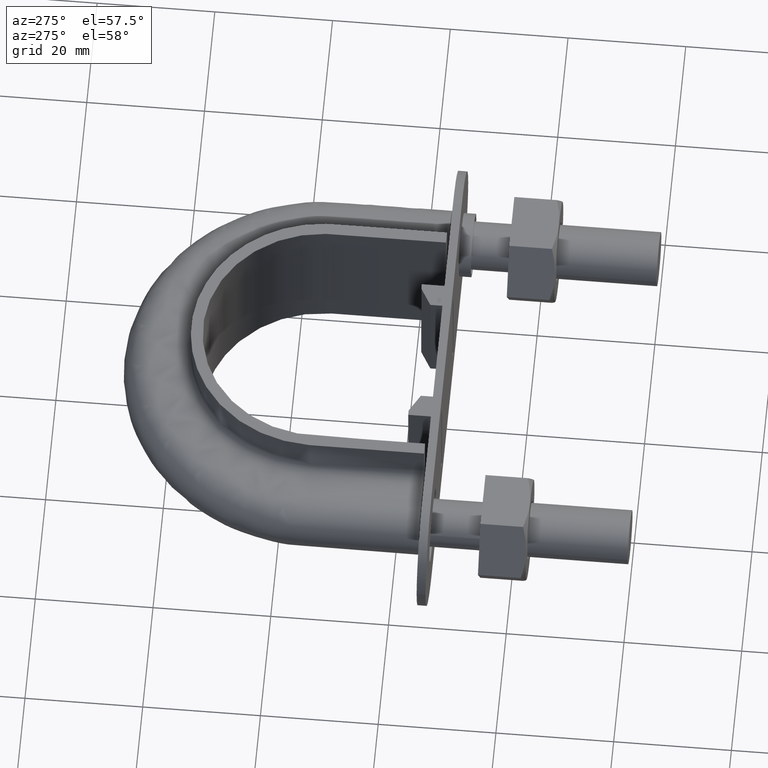
[diagram: clean part render]
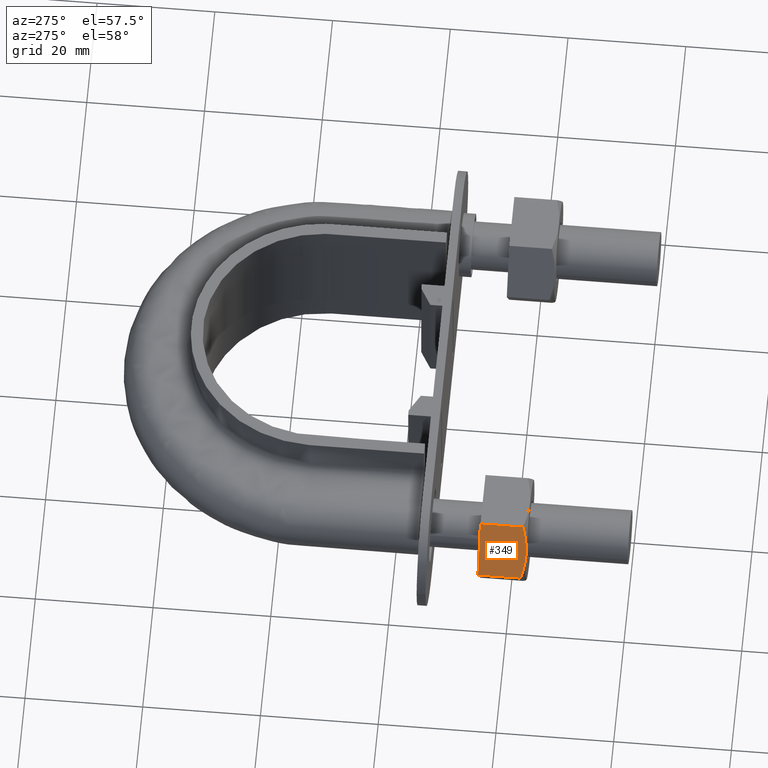
[diagram: same view with one face highlighted and labeled with its STEP entity id]
A machine part, auxiliary view. The second image highlights one B-rep face of the part: STEP entity #349.
In plain terms, the highlighted planar face has unit normal (0.866, -0, -0.5).
Its self-contained STEP definition (entity closure, byte-faithful):
#349 = ADVANCED_FACE( '', ( #568 ), #569, .F. );
#568 = FACE_OUTER_BOUND( '', #1650, .T. );
#569 = PLANE( '', #1651 );
#1650 = EDGE_LOOP( '', ( #2321, #2322, #2323, #2324, #2325 ) );
#1651 = AXIS2_PLACEMENT_3D( '', #2326, #2327, #2328 );
#2321 = ORIENTED_EDGE( '', *, *, #2695, .F. );
#2322 = ORIENTED_EDGE( '', *, *, #2728, .F. );
#2323 = ORIENTED_EDGE( '', *, *, #2729, .F. );
#2324 = ORIENTED_EDGE( '', *, *, #2702, .F. );
#2325 = ORIENTED_EDGE( '', *, *, #2722, .F. );
#2326 = CARTESIAN_POINT( '', ( -37.8149545762228, 25.0000000000000, 1.15330621785827E-007 ) );
#2327 = DIRECTION( '', ( 0.866025397909171, -1.42085420791467E-017, -0.500000010176262 ) );
#2328 = DIRECTION( '', ( -0.500000010176262, 2.20311349664979E-016, -0.866025397909171 ) );
#2695 = EDGE_CURVE( '', #3024, #3037, #3038, .T. );
#2702 = EDGE_CURVE( '', #3048, #3050, #3051, .T. );
#2722 = EDGE_CURVE( '', #3037, #3048, #3081, .T. );
#2728 = EDGE_CURVE( '', #3089, #3024, #3090, .T. );
#2729 = EDGE_CURVE( '', #3050, #3089, #3091, .F. );
#3024 = VERTEX_POINT( '', #3744 );
#3037 = VERTEX_POINT( '', #3765 );
#3038 = B_SPLINE_CURVE_WITH_KNOTS( '', 3, ( #3766, #3767, #3768, #3769, #3770, #3771, #3772, #3773 ), .UNSPECIFIED., .F., .F., ( 4, 2, 2, 4 ), ( 0.00493529902949345, 0.00616408349151745, 0.00739286795354144, 0.00985043687758943 ), .UNSPECIFIED. );
#3048 = VERTEX_POINT( '', #3784 );
#3050 = VERTEX_POINT( '', #3786 );
#3051 = LINE( '', #3787, #3788 );
#3081 = LINE( '', #3856, #3857 );
#3089 = VERTEX_POINT( '', #3877 );
#3090 = B_SPLINE_CURVE_WITH_KNOTS( '', 3, ( #3878, #3879, #3880, #3881, #3882, #3883 ), .UNSPECIFIED., .F., .F., ( 4, 2, 4 ), ( 7.17194508350585E-007, 0.00246800811200090, 0.00493529902949345 ), .UNSPECIFIED. );
#3091 = LINE( '', #3884, #3885 );
#3744 = CARTESIAN_POINT( '', ( -35.3612158822275, 17.0000000000007, 4.25000008649797 ) );
#3765 = CARTESIAN_POINT( '', ( -37.7999656115133, 17.7505553499471, 0.0259617630558714 ) );
#3766 = CARTESIAN_POINT( '', ( -35.3612158822272, 17.0000000000004, 4.25000008649782 ) );
#3767 = CARTESIAN_POINT( '', ( -35.5680707003126, 17.0000000000004, 3.89171704150597 ) );
#3768 = CARTESIAN_POINT( '', ( -35.7759593014695, 17.0177112141224, 3.53164343175906 ) );
#3769 = CARTESIAN_POINT( '', ( -36.1872153998671, 17.0863020976803, 2.81932699374175 ) );
#3770 = CARTESIAN_POINT( '', ( -36.3914764621940, 17.1371114863344, 2.46553646538436 ) );
#3771 = CARTESIAN_POINT( '', ( -37.0006497579841, 17.3331491064660, 1.41041739509406 ) );
#3772 = CARTESIAN_POINT( '', ( -37.4019654893652, 17.5218250443854, 0.715318177328128 ) );
#3773 = CARTESIAN_POINT( '', ( -37.7999656115133, 17.7505553499470, 0.0259617630558557 ) );
#3784 = CARTESIAN_POINT( '', ( -37.7999656115133, 25.0000000000000, 0.0259617630558752 ) );
#3786 = CARTESIAN_POINT( '', ( -32.9224661529417, 25.0000000000000, 8.47403840994006 ) );
#3787 = CARTESIAN_POINT( '', ( -32.9112158323642, 25.0000000000000, 8.49352453625300 ) );
#3788 = VECTOR( '', #4292, 1000.00000000004 );
#3856 = CARTESIAN_POINT( '', ( -37.7999656115133, 25.0000000000000, 0.0259617630558747 ) );
#3857 = VECTOR( '', #4317, 999.999999999972 );
#3877 = CARTESIAN_POINT( '', ( -32.9224661529417, 17.7505553499471, 8.47403840994006 ) );
#3878 = CARTESIAN_POINT( '', ( -32.9224661529411, 17.7505553499470, 8.47403840993972 ) );
#3879 = CARTESIAN_POINT( '', ( -33.3215179278348, 17.5212206605160, 7.78286047972949 ) );
#3880 = CARTESIAN_POINT( '', ( -33.7234520292080, 17.3324529479809, 7.08669021374843 ) );
#3881 = CARTESIAN_POINT( '', ( -34.5355975071057, 17.0714150925764, 5.68001302106480 ) );
#3882 = CARTESIAN_POINT( '', ( -34.9458696358552, 17.0000000000004, 4.96940086842494 ) );
#3883 = CARTESIAN_POINT( '', ( -35.3612158822272, 17.0000000000004, 4.25000008649782 ) );
#3884 = CARTESIAN_POINT( '', ( -32.9224661529417, 25.0000000000000, 8.47403840994006 ) );
#3885 = VECTOR( '', #4323, 999.999999999972 );
#4292 = DIRECTION( '', ( 0.500000010176199, -2.20311349664978E-016, 0.866025397909207 ) );
#4317 = DIRECTION( '', ( 1.22460635382238E-016, 1.00000000000000, 1.83690953073357E-016 ) );
#4323 = DIRECTION( '', ( 1.22460635382238E-016, 1.00000000000000, 1.83690953073357E-016 ) );